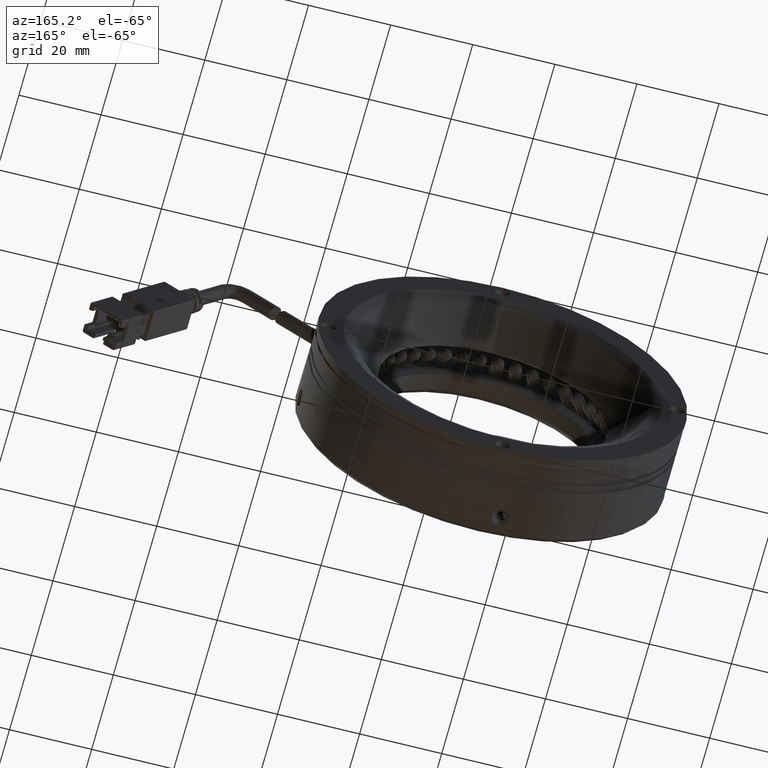
[diagram: clean part render]
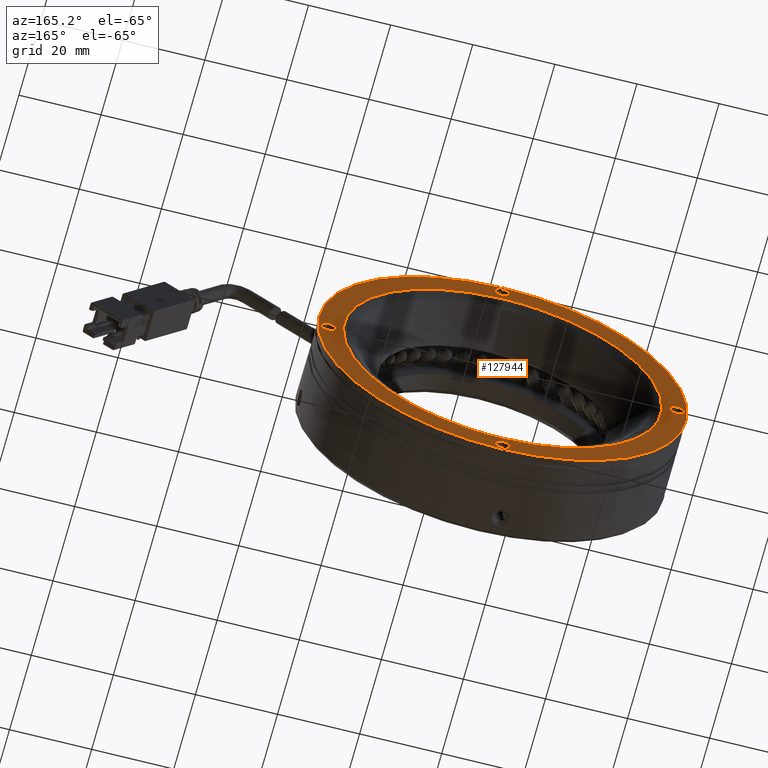
[diagram: same view with one face highlighted and labeled with its STEP entity id]
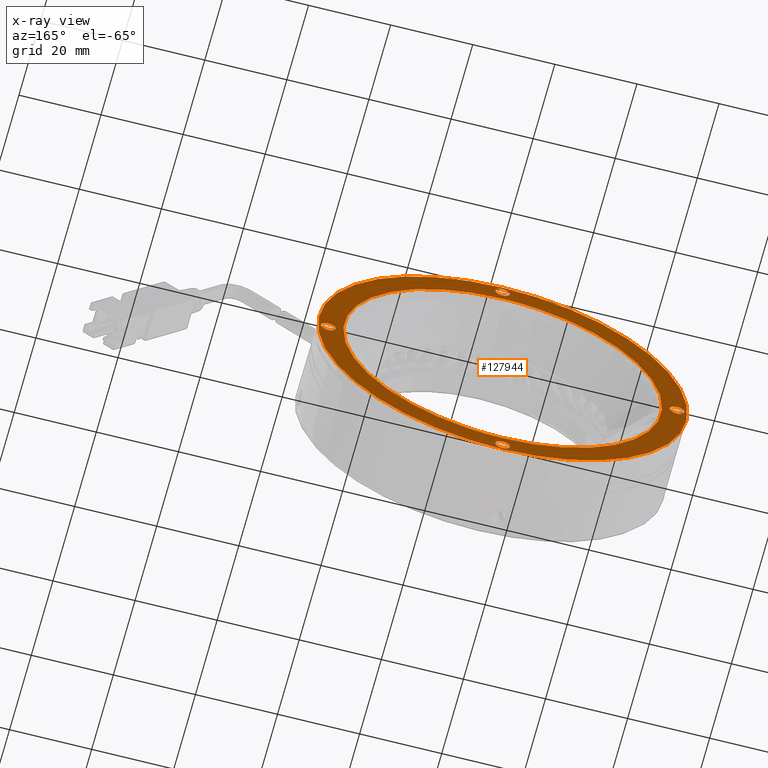
[diagram: x-ray of the same camera — body ghosted, the highlighted face saturated]
A machine part, auxiliary view. The second image highlights one B-rep face of the part: STEP entity #127944.
The next image is the same camera in x-ray: the body ghosted, the highlighted face saturated — about 0% of this face is hidden behind the body in this view.
In plain terms, the highlighted planar face has unit normal (0, -1, 0).
Its self-contained STEP definition (entity closure, byte-faithful):
#194 = DIRECTION ( 'NONE',  ( 0.0000000000000000000, 0.0000000000000000000, 1.000000000000000000 ) ) ;
#1707 = DIRECTION ( 'NONE',  ( 0.0000000000000000000, 0.0000000000000000000, -1.000000000000000000 ) ) ;
#1830 = CARTESIAN_POINT ( 'NONE',  ( 23.66681339429154500, 38.97876601230221600, -42.62634949282938400 ) ) ;
#2621 = VERTEX_POINT ( 'NONE', #20128 ) ;
#2661 = EDGE_CURVE ( 'NONE', #19482, #111278, #99416, .T. ) ;
#6700 = ORIENTED_EDGE ( 'NONE', *, *, #18319, .F. ) ;
#7168 = CARTESIAN_POINT ( 'NONE',  ( -53.99004085520083900, 38.97876601230222300, -42.62634949282938400 ) ) ;
#9099 = DIRECTION ( 'NONE',  ( 0.0000000000000000000, 1.000000000000000000, 0.0000000000000000000 ) ) ;
#9500 = FACE_BOUND ( 'NONE', #15263, .T. ) ;
#10104 = EDGE_CURVE ( 'NONE', #78240, #118183, #44810, .T. ) ;
#11015 = EDGE_CURVE ( 'NONE', #111278, #19482, #41019, .T. ) ;
#13096 = EDGE_CURVE ( 'NONE', #60030, #130819, #30134, .T. ) ;
#14607 = DIRECTION ( 'NONE',  ( 0.0000000000000000000, 0.0000000000000000000, 1.000000000000000000 ) ) ;
#14876 = DIRECTION ( 'NONE',  ( 0.0000000000000000000, 1.000000000000000000, 0.0000000000000000000 ) ) ;
#15263 = EDGE_LOOP ( 'NONE', ( #108040, #60104 ) ) ;
#15314 = CARTESIAN_POINT ( 'NONE',  ( -96.49004085520084600, 38.97876601230211000, -3.797922368083035800 ) ) ;
#17099 = CARTESIAN_POINT ( 'NONE',  ( -53.99004085520083900, 38.97876601230196100, -48.09792236806791300 ) ) ;
#17674 = CARTESIAN_POINT ( 'NONE',  ( -53.99004085520083900, 38.97876601230221600, 41.20207763191681500 ) ) ;
#18145 = CARTESIAN_POINT ( 'NONE',  ( -53.99004085520083200, 38.97876601230221600, -48.79792236808318500 ) ) ;
#18228 = CARTESIAN_POINT ( 'NONE',  ( -53.99004085520083900, 38.97876601230221600, -3.797922368083184200 ) ) ;
#18319 = EDGE_CURVE ( 'NONE', #79361, #79030, #23608, .T. ) ;
#18687 = AXIS2_PLACEMENT_3D ( 'NONE', #45725, #118425, #56180 ) ;
#19234 = ORIENTED_EDGE ( 'NONE', *, *, #11015, .F. ) ;
#19482 = VERTEX_POINT ( 'NONE', #59826 ) ;
#19804 = CARTESIAN_POINT ( 'NONE',  ( -131.6468951046932100, 38.97876601230221600, -42.62634949282938400 ) ) ;
#20128 = CARTESIAN_POINT ( 'NONE',  ( -53.99004085520083200, 38.97876601230222300, 35.03050475666301400 ) ) ;
#22456 = AXIS2_PLACEMENT_3D ( 'NONE', #124878, #62598, #194 ) ;
#23523 = DIRECTION ( 'NONE',  ( 0.0000000000000000000, 1.000000000000000000, 0.0000000000000000000 ) ) ;
#23608 = CIRCLE ( 'NONE', #78764, 1.799999999984723600 ) ;
#26027 = DIRECTION ( 'NONE',  ( 0.0000000000000000000, 1.000000000000000000, 0.0000000000000000000 ) ) ;
#28715 = DIRECTION ( 'NONE',  ( 0.0000000000000000000, 0.0000000000000000000, 1.000000000000000000 ) ) ;
#30134 = CIRCLE ( 'NONE', #33295, 45.00000000000000000 ) ;
#30279 = CARTESIAN_POINT ( 'NONE',  ( -53.99004085520083200, 38.97876601230222300, 35.03050475666301400 ) ) ;
#33295 = AXIS2_PLACEMENT_3D ( 'NONE', #18228, #91024, #28715 ) ;
#34659 = CARTESIAN_POINT ( 'NONE',  ( -53.99004085520083900, 38.97876601230196100, 40.50207763193791500 ) ) ;
#35896 = EDGE_LOOP ( 'NONE', ( #53010, #125957 ) ) ;
#36178 = EDGE_CURVE ( 'NONE', #62391, #124974, #119954, .T. ) ;
#36796 = CARTESIAN_POINT ( 'NONE',  ( -53.99004085520083900, 38.97876601230196100, -46.29792236808318500 ) ) ;
#37178 = FACE_BOUND ( 'NONE', #76492, .T. ) ;
#39363 = EDGE_CURVE ( 'NONE', #130819, #60030, #93475, .T. ) ;
#39675 = CIRCLE ( 'NONE', #98482, 1.800000000060198800 ) ;
#41019 = CIRCLE ( 'NONE', #43567, 1.800000000059753800 ) ;
#41681 = ORIENTED_EDGE ( 'NONE', *, *, #2661, .F. ) ;
#43550 = EDGE_CURVE ( 'NONE', #124974, #62391, #39675, .T. ) ;
#43567 = AXIS2_PLACEMENT_3D ( 'NONE', #55167, #127911, #65631 ) ;
#44810 = CIRCLE ( 'NONE', #22456, 1.800000000021097200 ) ;
#45210 = DIRECTION ( 'NONE',  ( 0.0000000000000000000, 1.000000000000000000, 0.0000000000000000000 ) ) ;
#45725 = CARTESIAN_POINT ( 'NONE',  ( -53.99004085520083900, 38.97876601230221600, -3.797922368083184200 ) ) ;
#47255 = DIRECTION ( 'NONE',  ( 0.0000000000000000000, 0.0000000000000000000, 1.000000000000000000 ) ) ;
#51247 = EDGE_LOOP ( 'NONE', ( #6700, #80781 ) ) ;
#53010 = ORIENTED_EDGE ( 'NONE', *, *, #13096, .F. ) ;
#55167 = CARTESIAN_POINT ( 'NONE',  ( -96.49004085520084600, 38.97876601230211000, -3.797922368083035800 ) ) ;
#56180 = DIRECTION ( 'NONE',  ( 0.0000000000000000000, 0.0000000000000000000, 1.000000000000000000 ) ) ;
#57735 = CIRCLE ( 'NONE', #85297, 1.800000000021097200 ) ;
#59826 = CARTESIAN_POINT ( 'NONE',  ( -96.49004085520084600, 38.97876601230211000, -1.997922368023284700 ) ) ;
#60030 = VERTEX_POINT ( 'NONE', #17674 ) ;
#60104 = ORIENTED_EDGE ( 'NONE', *, *, #70477, .F. ) ;
#61971 = EDGE_CURVE ( 'NONE', #95772, #2621, #110047, .T. ) ;
#62391 = VERTEX_POINT ( 'NONE', #79751 ) ;
#62598 = DIRECTION ( 'NONE',  ( 0.0000000000000000000, 1.000000000000000000, 0.0000000000000000000 ) ) ;
#64136 = DIRECTION ( 'NONE',  ( 0.0000000000000000000, -1.000000000000000000, 0.0000000000000000000 ) ) ;
#64226 = CARTESIAN_POINT ( 'NONE',  ( -96.49004085520084600, 38.97876601230211000, -5.597922368142787000 ) ) ;
#64868 = FACE_BOUND ( 'NONE', #51247, .T. ) ;
#65631 = DIRECTION ( 'NONE',  ( 0.0000000000000000000, 0.0000000000000000000, 1.000000000000000000 ) ) ;
#68148 = FACE_OUTER_BOUND ( 'NONE', #35896, .T. ) ;
#70477 = EDGE_CURVE ( 'NONE', #118183, #78240, #57735, .T. ) ;
#71493 = CARTESIAN_POINT ( 'NONE',  ( -53.99004085520083900, 38.97876601230196100, 38.70207763191682200 ) ) ;
#74208 = AXIS2_PLACEMENT_3D ( 'NONE', #15314, #14876, #14607 ) ;
#74725 = CARTESIAN_POINT ( 'NONE',  ( -53.99004085520083900, 38.97876601230222300, -42.62634949282938400 ) ) ;
#76492 = EDGE_LOOP ( 'NONE', ( #41681, #19234 ) ) ;
#78240 = VERTEX_POINT ( 'NONE', #34659 ) ;
#78764 = AXIS2_PLACEMENT_3D ( 'NONE', #88371, #26027, #98789 ) ;
#79030 = VERTEX_POINT ( 'NONE', #17099 ) ;
#79361 = VERTEX_POINT ( 'NONE', #109822 ) ;
#79751 = CARTESIAN_POINT ( 'NONE',  ( -11.49004085520083300, 38.97876601230196100, -5.597922368143827900 ) ) ;
#80483 = CIRCLE ( 'NONE', #97608, 1.799999999984723600 ) ;
#80781 = ORIENTED_EDGE ( 'NONE', *, *, #115156, .F. ) ;
#81911 = DIRECTION ( 'NONE',  ( 0.0000000000000000000, 0.0000000000000000000, 1.000000000000000000 ) ) ;
#82149 = CARTESIAN_POINT ( 'NONE',  ( -53.99004085520083900, 38.97876601230222300, -42.62634949282938400 ) ) ;
#83269 = EDGE_CURVE ( 'NONE', #2621, #95772, #122030, .T. ) ;
#84604 = PLANE ( 'NONE',  #130293 ) ;
#84724 = CARTESIAN_POINT ( 'NONE',  ( 23.66681339429155500, 38.97876601230221600, 35.03050475666300700 ) ) ;
#85297 = AXIS2_PLACEMENT_3D ( 'NONE', #71493, #9099, #81911 ) ;
#85858 = CARTESIAN_POINT ( 'NONE',  ( -11.49004085520083300, 38.97876601230196100, -3.797922368083629200 ) ) ;
#86067 = AXIS2_PLACEMENT_3D ( 'NONE', #85858, #23523, #96274 ) ;
#86572 = EDGE_LOOP ( 'NONE', ( #92983, #107504 ) ) ;
#88371 = CARTESIAN_POINT ( 'NONE',  ( -53.99004085520083900, 38.97876601230196100, -46.29792236808318500 ) ) ;
#91024 = DIRECTION ( 'NONE',  ( 0.0000000000000000000, -1.000000000000000000, 0.0000000000000000000 ) ) ;
#92560 = CARTESIAN_POINT ( 'NONE',  ( -131.6468951046932100, 38.97876601230221600, 35.03050475666302100 ) ) ;
#92983 = ORIENTED_EDGE ( 'NONE', *, *, #43550, .F. ) ;
#93475 = CIRCLE ( 'NONE', #18687, 45.00000000000000000 ) ;
#94402 = ORIENTED_EDGE ( 'NONE', *, *, #61971, .F. ) ;
#95772 = VERTEX_POINT ( 'NONE', #7168 ) ;
#95784 = CARTESIAN_POINT ( 'NONE',  ( -53.99004085520083900, 38.97876601230196100, 36.90207763189572200 ) ) ;
#96274 = DIRECTION ( 'NONE',  ( 0.0000000000000000000, 0.0000000000000000000, 1.000000000000000000 ) ) ;
#97608 = AXIS2_PLACEMENT_3D ( 'NONE', #36796, #109524, #47255 ) ;
#98482 = AXIS2_PLACEMENT_3D ( 'NONE', #107471, #45210, #117919 ) ;
#98789 = DIRECTION ( 'NONE',  ( 0.0000000000000000000, 0.0000000000000000000, 1.000000000000000000 ) ) ;
#99416 = CIRCLE ( 'NONE', #74208, 1.800000000059753800 ) ;
#107471 = CARTESIAN_POINT ( 'NONE',  ( -11.49004085520083300, 38.97876601230196100, -3.797922368083629200 ) ) ;
#107504 = ORIENTED_EDGE ( 'NONE', *, *, #36178, .F. ) ;
#108040 = ORIENTED_EDGE ( 'NONE', *, *, #10104, .F. ) ;
#109524 = DIRECTION ( 'NONE',  ( 0.0000000000000000000, 1.000000000000000000, 0.0000000000000000000 ) ) ;
#109623 = EDGE_LOOP ( 'NONE', ( #94402, #112371 ) ) ;
#109822 = CARTESIAN_POINT ( 'NONE',  ( -53.99004085520083900, 38.97876601230196100, -44.49792236809846500 ) ) ;
#110047 =( BOUNDED_CURVE ( )  B_SPLINE_CURVE ( 3, ( #82149, #19804, #92560, #30279 ),
 .UNSPECIFIED., .F., .T. ) 
 B_SPLINE_CURVE_WITH_KNOTS ( ( 4, 4 ),
 ( 0.0000000000000000000, 1.000000000000000000 ),
 .UNSPECIFIED. ) 
 CURVE ( )  GEOMETRIC_REPRESENTATION_ITEM ( )  RATIONAL_B_SPLINE_CURVE ( ( 1.000000000000000000, 0.3333333333333333700, 0.3333333333333333700, 1.000000000000000000 ) ) 
 REPRESENTATION_ITEM ( '' )  );
#111278 = VERTEX_POINT ( 'NONE', #64226 ) ;
#112371 = ORIENTED_EDGE ( 'NONE', *, *, #83269, .F. ) ;
#115156 = EDGE_CURVE ( 'NONE', #79030, #79361, #80483, .T. ) ;
#116886 = FACE_BOUND ( 'NONE', #86572, .T. ) ;
#117919 = DIRECTION ( 'NONE',  ( 0.0000000000000000000, 0.0000000000000000000, 1.000000000000000000 ) ) ;
#118183 = VERTEX_POINT ( 'NONE', #95784 ) ;
#118425 = DIRECTION ( 'NONE',  ( 0.0000000000000000000, -1.000000000000000000, 0.0000000000000000000 ) ) ;
#119944 = CARTESIAN_POINT ( 'NONE',  ( -11.49004085520083300, 38.97876601230196100, -1.997922368023430400 ) ) ;
#119954 = CIRCLE ( 'NONE', #86067, 1.800000000060198800 ) ;
#120146 = FACE_BOUND ( 'NONE', #109623, .T. ) ;
#122030 =( BOUNDED_CURVE ( )  B_SPLINE_CURVE ( 3, ( #126036, #84724, #1830, #74725 ),
 .UNSPECIFIED., .F., .F. ) 
 B_SPLINE_CURVE_WITH_KNOTS ( ( 4, 4 ),
 ( 0.0000000000000000000, 1.000000000000000000 ),
 .UNSPECIFIED. ) 
 CURVE ( )  GEOMETRIC_REPRESENTATION_ITEM ( )  RATIONAL_B_SPLINE_CURVE ( ( 1.000000000000000000, 0.3333333333333333700, 0.3333333333333333700, 1.000000000000000000 ) ) 
 REPRESENTATION_ITEM ( '' )  );
#124878 = CARTESIAN_POINT ( 'NONE',  ( -53.99004085520083900, 38.97876601230196100, 38.70207763191682200 ) ) ;
#124974 = VERTEX_POINT ( 'NONE', #119944 ) ;
#125957 = ORIENTED_EDGE ( 'NONE', *, *, #39363, .F. ) ;
#126036 = CARTESIAN_POINT ( 'NONE',  ( -53.99004085520083200, 38.97876601230222300, 35.03050475666301400 ) ) ;
#126380 = CARTESIAN_POINT ( 'NONE',  ( -8.990040855200838600, 38.97876601230221600, -3.797922368083184200 ) ) ;
#127911 = DIRECTION ( 'NONE',  ( 0.0000000000000000000, 1.000000000000000000, 0.0000000000000000000 ) ) ;
#127944 = ADVANCED_FACE ( 'NONE', ( #68148, #120146, #64868, #37178, #9500, #116886 ), #84604, .F. ) ;
#130293 = AXIS2_PLACEMENT_3D ( 'NONE', #126380, #64136, #1707 ) ;
#130819 = VERTEX_POINT ( 'NONE', #18145 ) ;